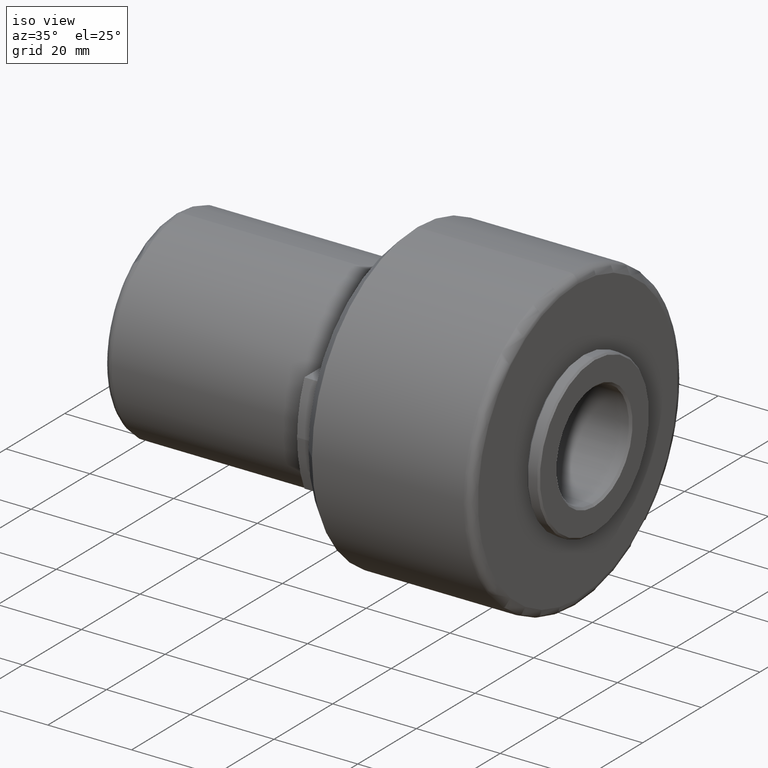
[diagram: clean part render]
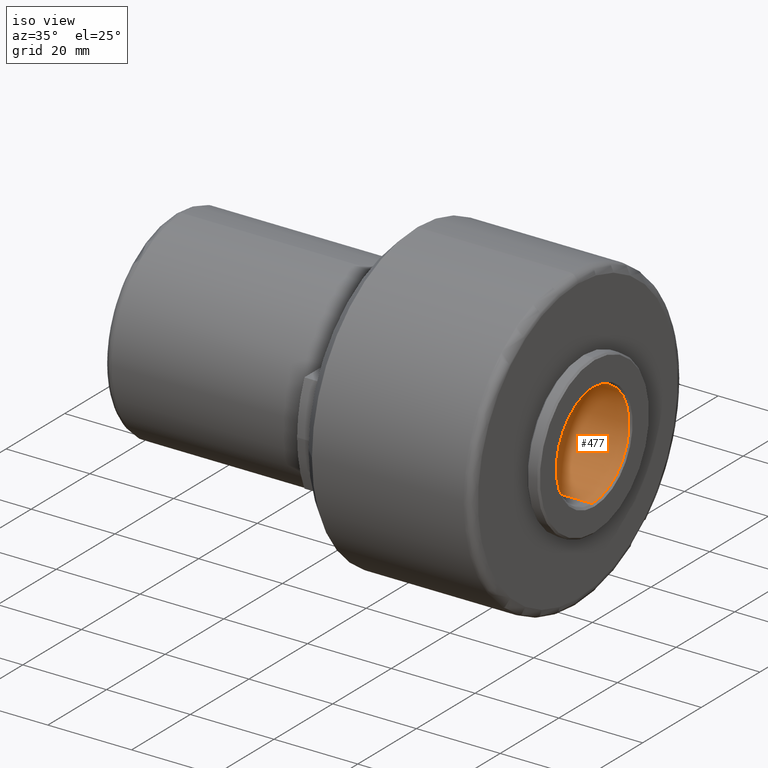
[diagram: same view with one face highlighted and labeled with its STEP entity id]
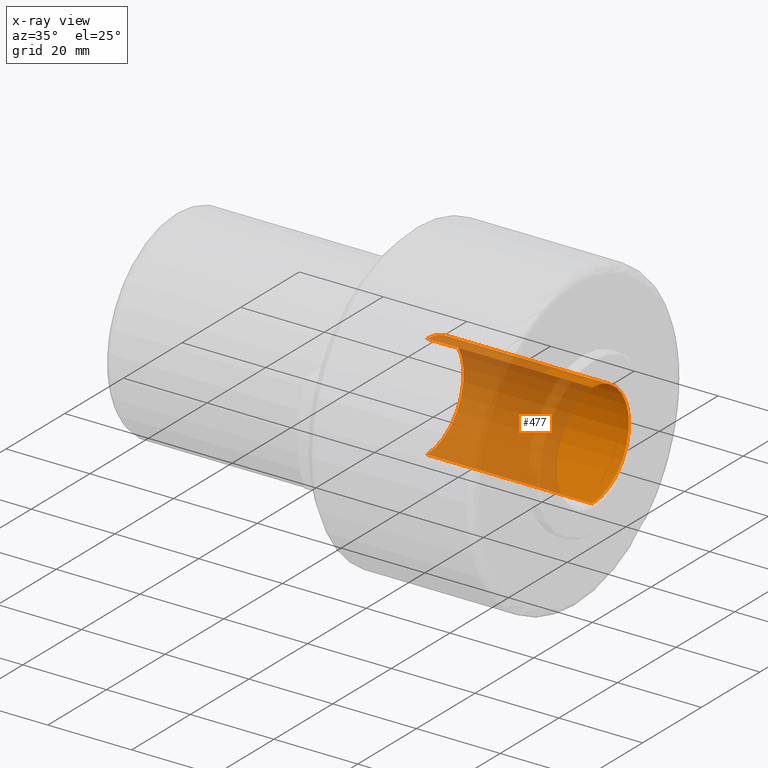
[diagram: x-ray of the same camera — body ghosted, the highlighted face saturated]
A machine part, iso view. The second image highlights one B-rep face of the part: STEP entity #477.
The next image is the same camera in x-ray: the body ghosted, the highlighted face saturated — about 67% of this face is hidden behind the body in this view.
In plain terms, the highlighted cylindrical surface (partial cylindrical patch) has radius 12.5 mm, axis along (-1, -0, -0).
Its self-contained STEP definition (entity closure, byte-faithful):
#72 = EDGE_CURVE ( 'NONE', #749, #1090, #274, .T. ) ;
#187 = DIRECTION ( 'NONE',  ( -1.000000000000000000, -0.0000000000000000000, -0.0000000000000000000 ) ) ;
#205 = CARTESIAN_POINT ( 'NONE',  ( 100.0000000000000300, 0.0000000000000000000, 0.0000000000000000000 ) ) ;
#232 = CARTESIAN_POINT ( 'NONE',  ( 0.0000000000000000000, 1.530808498934191100E-015, -12.49999999999999600 ) ) ;
#233 = DIRECTION ( 'NONE',  ( -1.000000000000000000, -0.0000000000000000000, -0.0000000000000000000 ) ) ;
#252 = CARTESIAN_POINT ( 'NONE',  ( 60.50000000000002800, 0.0000000000000000000, 12.49999999999999500 ) ) ;
#254 = FACE_OUTER_BOUND ( 'NONE', #1182, .T. ) ;
#264 = DIRECTION ( 'NONE',  ( 0.0000000000000000000, 0.0000000000000000000, -1.000000000000000000 ) ) ;
#274 = LINE ( 'NONE', #232, #839 ) ;
#318 = EDGE_CURVE ( 'NONE', #843, #1040, #974, .T. ) ;
#427 = VECTOR ( 'NONE', #187, 1000.000000000000000 ) ;
#465 = CARTESIAN_POINT ( 'NONE',  ( 100.0000000000000300, 0.0000000000000000000, 12.49999999999999600 ) ) ;
#477 = ADVANCED_FACE ( 'NONE', ( #254 ), #515, .F. ) ;
#487 = ORIENTED_EDGE ( 'NONE', *, *, #318, .T. ) ;
#493 = CARTESIAN_POINT ( 'NONE',  ( 60.50000000000002800, 1.530808498934190900E-015, -12.49999999999999500 ) ) ;
#503 = EDGE_CURVE ( 'NONE', #1040, #1090, #782, .T. ) ;
#515 = CYLINDRICAL_SURFACE ( 'NONE', #1251, 12.49999999999999600 ) ;
#553 = ORIENTED_EDGE ( 'NONE', *, *, #503, .T. ) ;
#591 = CIRCLE ( 'NONE', #850, 12.49999999999999600 ) ;
#610 = CARTESIAN_POINT ( 'NONE',  ( 100.0000000000000300, 1.530808498934191100E-015, -12.49999999999999600 ) ) ;
#626 = DIRECTION ( 'NONE',  ( -1.000000000000000000, -0.0000000000000000000, -0.0000000000000000000 ) ) ;
#673 = ORIENTED_EDGE ( 'NONE', *, *, #72, .F. ) ;
#739 = DIRECTION ( 'NONE',  ( 0.0000000000000000000, 0.0000000000000000000, 1.000000000000000000 ) ) ;
#749 = VERTEX_POINT ( 'NONE', #610 ) ;
#760 = DIRECTION ( 'NONE',  ( -1.000000000000000000, -0.0000000000000000000, -0.0000000000000000000 ) ) ;
#782 = CIRCLE ( 'NONE', #882, 12.49999999999999500 ) ;
#804 = DIRECTION ( 'NONE',  ( 1.000000000000000000, -0.0000000000000000000, -0.0000000000000000000 ) ) ;
#839 = VECTOR ( 'NONE', #233, 1000.000000000000000 ) ;
#843 = VERTEX_POINT ( 'NONE', #465 ) ;
#850 = AXIS2_PLACEMENT_3D ( 'NONE', #205, #804, #264 ) ;
#882 = AXIS2_PLACEMENT_3D ( 'NONE', #910, #626, #739 ) ;
#910 = CARTESIAN_POINT ( 'NONE',  ( 60.50000000000002800, 0.0000000000000000000, 0.0000000000000000000 ) ) ;
#937 = EDGE_CURVE ( 'NONE', #749, #843, #591, .T. ) ;
#974 = LINE ( 'NONE', #1028, #427 ) ;
#988 = CARTESIAN_POINT ( 'NONE',  ( 0.0000000000000000000, 0.0000000000000000000, 0.0000000000000000000 ) ) ;
#1028 = CARTESIAN_POINT ( 'NONE',  ( 0.0000000000000000000, 0.0000000000000000000, 12.49999999999999600 ) ) ;
#1040 = VERTEX_POINT ( 'NONE', #252 ) ;
#1090 = VERTEX_POINT ( 'NONE', #493 ) ;
#1182 = EDGE_LOOP ( 'NONE', ( #673, #1370, #487, #553 ) ) ;
#1186 = DIRECTION ( 'NONE',  ( 0.0000000000000000000, 0.0000000000000000000, 1.000000000000000000 ) ) ;
#1251 = AXIS2_PLACEMENT_3D ( 'NONE', #988, #760, #1186 ) ;
#1370 = ORIENTED_EDGE ( 'NONE', *, *, #937, .T. ) ;